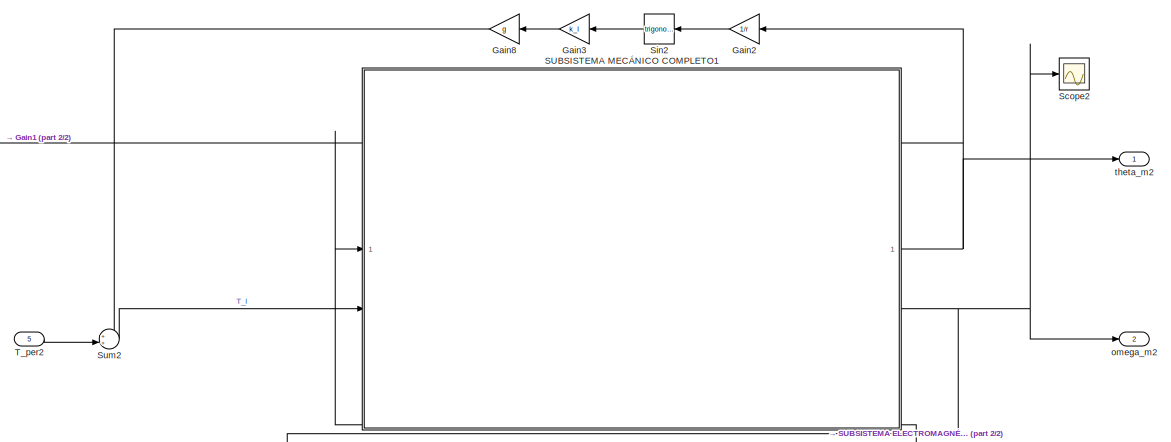
[diagram: root canvas - part 1/2, full width, top band]
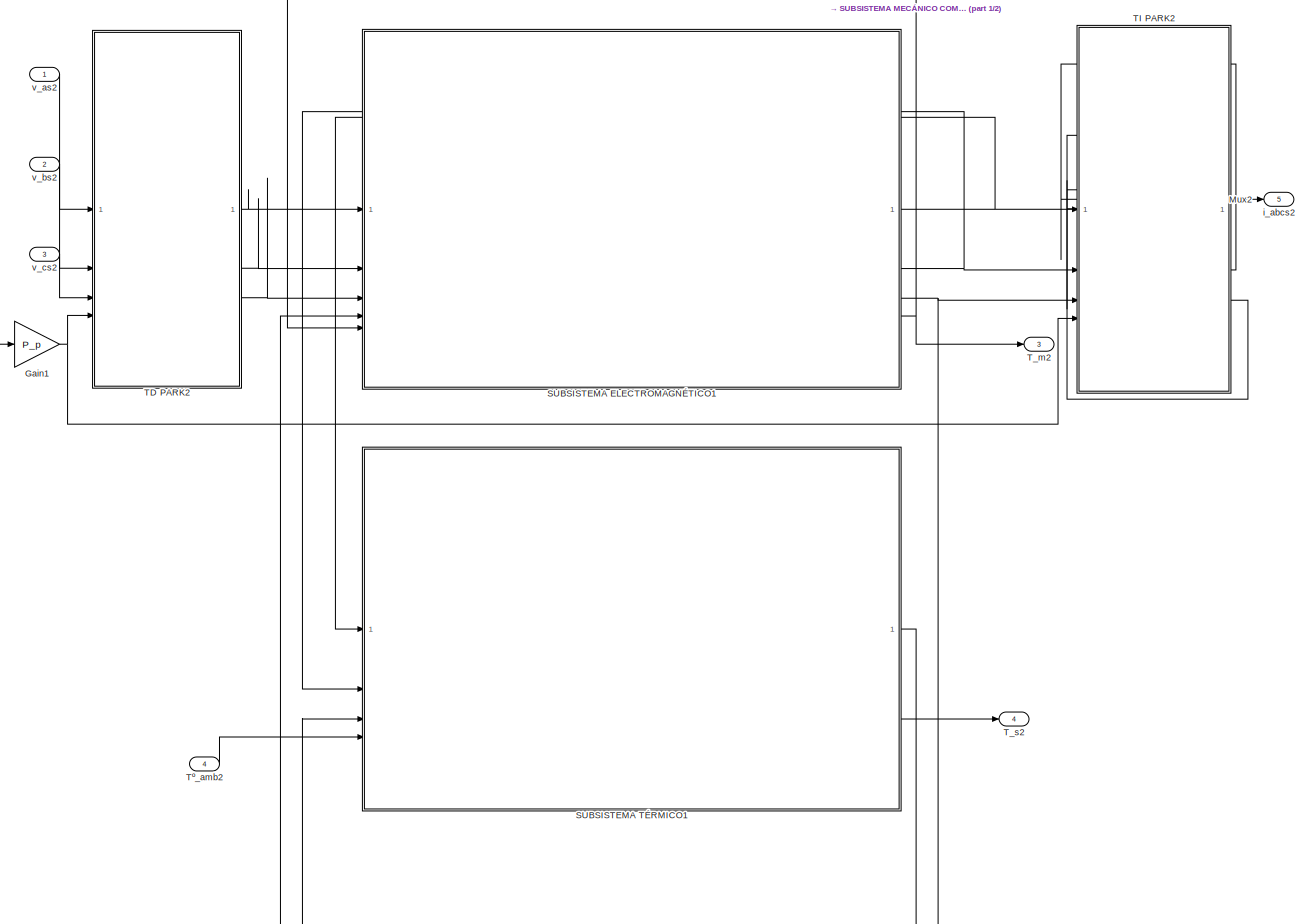
[diagram: root canvas - part 2/2, full width, middle band]
MODEL slx_60c17dea01b0
KIND model
CONFIG AbsTol = auto
CONFIG EnableMultiTasking = off
CONFIG FixedStep = auto
CONFIG MaxStep = auto
CONFIG MinStep = auto
CONFIG RelTol = 1e-3
CONFIG SampleTimeConstraint = Unconstrained
CONFIG SolverName = VariableStepAuto
CONFIG StartTime = 0.0
CONFIG StopTime = 10.0
BLOCK [Gain] Gain1
  Gain = P_p
BLOCK [Gain] Gain2
  Gain = 1/r
  NameLocation = top
BLOCK [Gain] Gain3
  Gain = k_l
  NameLocation = top
BLOCK [Gain] Gain8
  Gain = g
  NameLocation = top
BLOCK [Mux] Mux2
  DisplayOption = bar
  Inputs = 3
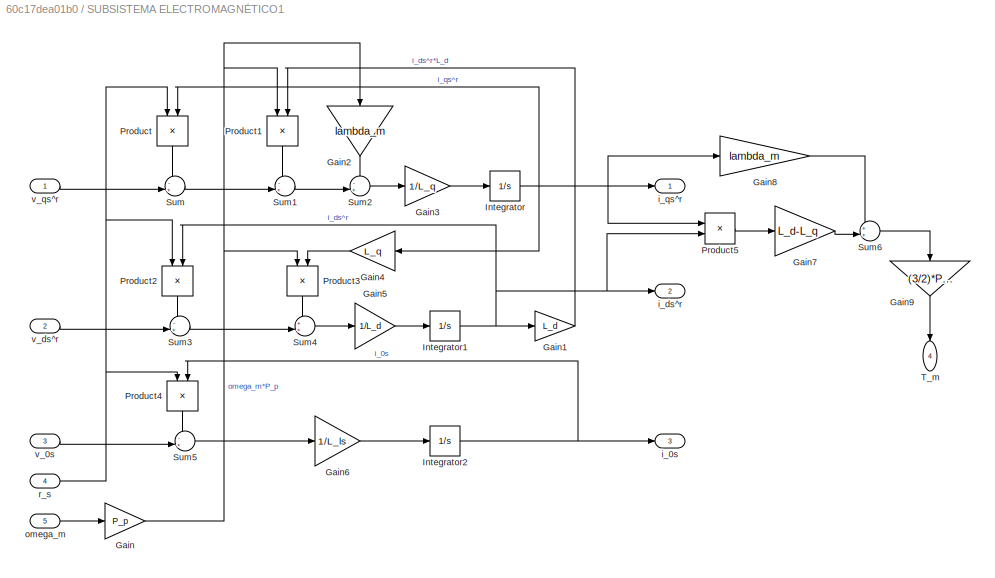
BLOCK [SubSystem] SUBSISTEMA ELECTROMAGNÉTICO1
BLOCK [Gain] SUBSISTEMA ELECTROMAGNÉTICO1/Gain
  Gain = P_p
BLOCK [Gain] SUBSISTEMA ELECTROMAGNÉTICO1/Gain1
  Gain = L_d
BLOCK [Gain] SUBSISTEMA ELECTROMAGNÉTICO1/Gain2
  Gain = lambda_m
  NameLocation = left
BLOCK [Gain] SUBSISTEMA ELECTROMAGNÉTICO1/Gain3
  Gain = 1/L_q
BLOCK [Gain] SUBSISTEMA ELECTROMAGNÉTICO1/Gain4
  Gain = L_q
  NameLocation = top
BLOCK [Gain] SUBSISTEMA ELECTROMAGNÉTICO1/Gain5
  Gain = 1/L_d
BLOCK [Gain] SUBSISTEMA ELECTROMAGNÉTICO1/Gain6
  Gain = 1/L_ls
BLOCK [Gain] SUBSISTEMA ELECTROMAGNÉTICO1/Gain7
  Gain = L_d-L_q
BLOCK [Gain] SUBSISTEMA ELECTROMAGNÉTICO1/Gain8
  Gain = lambda_m
BLOCK [Gain] SUBSISTEMA ELECTROMAGNÉTICO1/Gain9
  Gain = (3/2)*P_p
  NameLocation = left
BLOCK [Integrator] SUBSISTEMA ELECTROMAGNÉTICO1/Integrator
BLOCK [Integrator] SUBSISTEMA ELECTROMAGNÉTICO1/Integrator1
BLOCK [Integrator] SUBSISTEMA ELECTROMAGNÉTICO1/Integrator2
BLOCK [Product] SUBSISTEMA ELECTROMAGNÉTICO1/Product
  NameLocation = left
BLOCK [Product] SUBSISTEMA ELECTROMAGNÉTICO1/Product1
  NameLocation = left
BLOCK [Product] SUBSISTEMA ELECTROMAGNÉTICO1/Product2
  NameLocation = left
BLOCK [Product] SUBSISTEMA ELECTROMAGNÉTICO1/Product3
  NameLocation = left
BLOCK [Product] SUBSISTEMA ELECTROMAGNÉTICO1/Product4
  NameLocation = left
BLOCK [Product] SUBSISTEMA ELECTROMAGNÉTICO1/Product5
BLOCK [Sum] SUBSISTEMA ELECTROMAGNÉTICO1/Sum
  Inputs = -+|
BLOCK [Sum] SUBSISTEMA ELECTROMAGNÉTICO1/Sum1
  Inputs = -+|
BLOCK [Sum] SUBSISTEMA ELECTROMAGNÉTICO1/Sum2
  Inputs = -+|
BLOCK [Sum] SUBSISTEMA ELECTROMAGNÉTICO1/Sum3
  Inputs = -+|
BLOCK [Sum] SUBSISTEMA ELECTROMAGNÉTICO1/Sum4
  Inputs = ++|
BLOCK [Sum] SUBSISTEMA ELECTROMAGNÉTICO1/Sum5
  Inputs = -+|
BLOCK [Sum] SUBSISTEMA ELECTROMAGNÉTICO1/Sum6
  Inputs = ++|
BLOCK [Outport] SUBSISTEMA ELECTROMAGNÉTICO1/T_m
  NameLocation = left
  Port = 4
BLOCK [Outport] SUBSISTEMA ELECTROMAGNÉTICO1/i_0s
  Port = 3
BLOCK [Outport] SUBSISTEMA ELECTROMAGNÉTICO1/i_ds^r
  Port = 2
BLOCK [Outport] SUBSISTEMA ELECTROMAGNÉTICO1/i_qs^r
BLOCK [Inport] SUBSISTEMA ELECTROMAGNÉTICO1/omega_m
  Port = 5
BLOCK [Inport] SUBSISTEMA ELECTROMAGNÉTICO1/r_s
  Port = 4
BLOCK [Inport] SUBSISTEMA ELECTROMAGNÉTICO1/v_0s
  Port = 3
BLOCK [Inport] SUBSISTEMA ELECTROMAGNÉTICO1/v_ds^r
  Port = 2
BLOCK [Inport] SUBSISTEMA ELECTROMAGNÉTICO1/v_qs^r
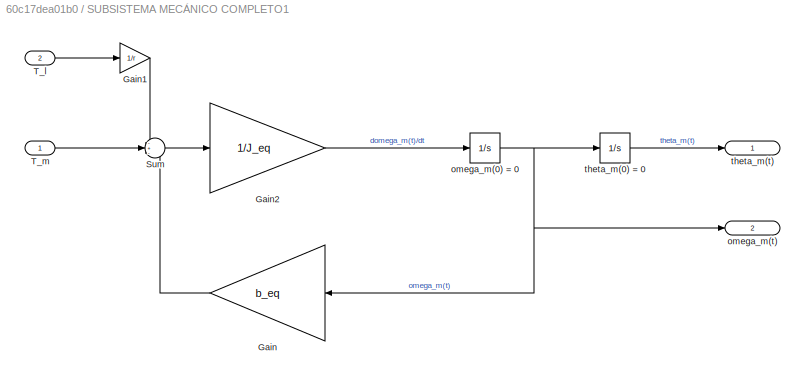
BLOCK [SubSystem] SUBSISTEMA MECÁNICO COMPLETO1
BLOCK [Gain] SUBSISTEMA MECÁNICO COMPLETO1/Gain
  Gain = b_eq
  NameLocation = top
BLOCK [Gain] SUBSISTEMA MECÁNICO COMPLETO1/Gain1
  Gain = 1/r
BLOCK [Gain] SUBSISTEMA MECÁNICO COMPLETO1/Gain2
  Gain = 1/J_eq
BLOCK [Sum] SUBSISTEMA MECÁNICO COMPLETO1/Sum
  Inputs = -+-
BLOCK [Inport] SUBSISTEMA MECÁNICO COMPLETO1/T_l
  Port = 2
BLOCK [Inport] SUBSISTEMA MECÁNICO COMPLETO1/T_m
BLOCK [Integrator] SUBSISTEMA MECÁNICO COMPLETO1/omega_m(0) = 0
BLOCK [Outport] SUBSISTEMA MECÁNICO COMPLETO1/omega_m(t)
  Port = 2
BLOCK [Integrator] SUBSISTEMA MECÁNICO COMPLETO1/theta_m(0) = 0
BLOCK [Outport] SUBSISTEMA MECÁNICO COMPLETO1/theta_m(t)
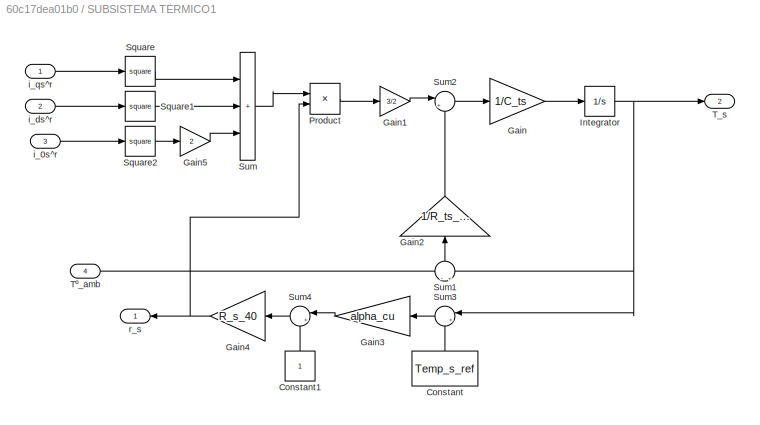
BLOCK [SubSystem] SUBSISTEMA TÉRMICO1
BLOCK [Constant] SUBSISTEMA TÉRMICO1/Constant
  NameLocation = right
  Value = Temp_s_ref
BLOCK [Constant] SUBSISTEMA TÉRMICO1/Constant1
  NameLocation = right
BLOCK [Gain] SUBSISTEMA TÉRMICO1/Gain
  Gain = 1/C_ts
BLOCK [Gain] SUBSISTEMA TÉRMICO1/Gain1
  Gain = 3/2
BLOCK [Gain] SUBSISTEMA TÉRMICO1/Gain2
  Gain = 1/R_ts_amb
  NameLocation = right
BLOCK [Gain] SUBSISTEMA TÉRMICO1/Gain3
  Gain = alpha_cu
  NameLocation = top
BLOCK [Gain] SUBSISTEMA TÉRMICO1/Gain4
  Gain = R_s_40
  NameLocation = top
BLOCK [Gain] SUBSISTEMA TÉRMICO1/Gain5
  Gain = 2
BLOCK [Integrator] SUBSISTEMA TÉRMICO1/Integrator
  InitialCondition = 40
BLOCK [Product] SUBSISTEMA TÉRMICO1/Product
BLOCK [Math] SUBSISTEMA TÉRMICO1/Square
  Operator = square
BLOCK [Math] SUBSISTEMA TÉRMICO1/Square1
  Operator = square
BLOCK [Math] SUBSISTEMA TÉRMICO1/Square2
  Operator = square
BLOCK [Sum] SUBSISTEMA TÉRMICO1/Sum
  IconShape = rectangular
  Inputs = +++
BLOCK [Sum] SUBSISTEMA TÉRMICO1/Sum1
  Inputs = -|+
  NameLocation = right
BLOCK [Sum] SUBSISTEMA TÉRMICO1/Sum2
  Inputs = |+-
BLOCK [Sum] SUBSISTEMA TÉRMICO1/Sum3
  Inputs = |+-
  NameLocation = top
BLOCK [Sum] SUBSISTEMA TÉRMICO1/Sum4
  Inputs = |++
  NameLocation = top
BLOCK [Outport] SUBSISTEMA TÉRMICO1/T_s
  Port = 2
BLOCK [Inport] SUBSISTEMA TÉRMICO1/Tº_amb
  Port = 4
BLOCK [Inport] SUBSISTEMA TÉRMICO1/i_0s^r
  Port = 3
BLOCK [Inport] SUBSISTEMA TÉRMICO1/i_ds^r
  Port = 2
BLOCK [Inport] SUBSISTEMA TÉRMICO1/i_qs^r
BLOCK [Outport] SUBSISTEMA TÉRMICO1/r_s
  NameLocation = top
BLOCK [Scope] Scope2
  Floating = off
  NumInputPorts = 1
  ScopeSpecificationString = Simulink.scopes.TimeScopeBlockCfg('CurrentConfiguration', extmgr.ConfigurationSet(extmgr.Configuration('Core','General UI',true),extmgr.Configuration('Core','Source UI',true),extmgr.Configuration('Sources','WiredSimulink',true,'DataLoggingVariableName','ScopeData1'),extmgr.Configuration('Visuals','Time Domain',true,'SerializedDisplays',{struct('MinYLimReal','-127.62191','MaxYLimReal','534.52388','...<+1574ch>
BLOCK [Trigonometry] Sin2
  NameLocation = top
BLOCK [Sum] Sum2
  Inputs = ++|
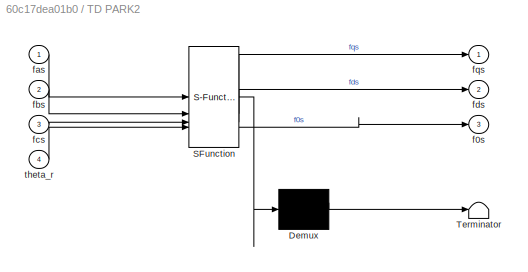
BLOCK [SubSystem] TD PARK2
  ErrorFcn = Stateflow.Translate.translate
  PermitHierarchicalResolution = ExplicitOnly
  SFBlockType = MATLAB Function
  TreatAsAtomicUnit = on
BLOCK [Demux] TD PARK2/ Demux 
  Outputs = 1
BLOCK [S-Function] TD PARK2/ SFunction 
  EnableBusSupport = on
  FunctionName = sf_sfun
  PortCounts = [4 4]
  SFcnIsStateOwnerBlock = off
  SFunctionDeploymentMode = off
  Tag = Stateflow S-Function 1
BLOCK [Terminator] TD PARK2/ Terminator 
BLOCK [Outport] TD PARK2/f0s
  Port = 3
BLOCK [Inport] TD PARK2/fas
BLOCK [Inport] TD PARK2/fbs
  Port = 2
BLOCK [Inport] TD PARK2/fcs
  Port = 3
BLOCK [Outport] TD PARK2/fds
  Port = 2
BLOCK [Outport] TD PARK2/fqs
BLOCK [Inport] TD PARK2/theta_r
  Port = 4
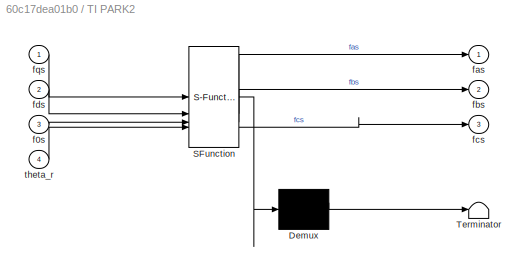
BLOCK [SubSystem] TI PARK2
  ErrorFcn = Stateflow.Translate.translate
  PermitHierarchicalResolution = ExplicitOnly
  SFBlockType = MATLAB Function
  TreatAsAtomicUnit = on
BLOCK [Demux] TI PARK2/ Demux 
  Outputs = 1
BLOCK [S-Function] TI PARK2/ SFunction 
  EnableBusSupport = on
  FunctionName = sf_sfun
  PortCounts = [4 4]
  SFcnIsStateOwnerBlock = off
  SFunctionDeploymentMode = off
  Tag = Stateflow S-Function 2
BLOCK [Terminator] TI PARK2/ Terminator 
BLOCK [Inport] TI PARK2/f0s
  Port = 3
BLOCK [Outport] TI PARK2/fas
BLOCK [Outport] TI PARK2/fbs
  Port = 2
BLOCK [Outport] TI PARK2/fcs
  Port = 3
BLOCK [Inport] TI PARK2/fds
  Port = 2
BLOCK [Inport] TI PARK2/fqs
BLOCK [Inport] TI PARK2/theta_r
  Port = 4
BLOCK [Outport] T_m2
  Port = 3
BLOCK [Inport] T_per2
  Port = 5
BLOCK [Outport] T_s2
  Port = 4
BLOCK [Inport] Tº_amb2
  Port = 4
BLOCK [Outport] i_abcs2
  Port = 5
BLOCK [Outport] omega_m2
  Port = 2
BLOCK [Outport] theta_m2
BLOCK [Inport] v_as2
BLOCK [Inport] v_bs2
  Port = 2
BLOCK [Inport] v_cs2
  Port = 3
NET Gain1:1 -> TD PARK2:4, TI PARK2:4
LINE Gain2:1 -> Sin2:1
LINE Gain3:1 -> Gain8:1
LINE Gain8:1 -> Sum2:1
LINE Mux2:1 -> i_abcs2:1
LINE SUBSISTEMA ELECTROMAGNÉTICO1/Gain1:1 -> SUBSISTEMA ELECTROMAGNÉTICO1/Product1:2
LINE SUBSISTEMA ELECTROMAGNÉTICO1/Gain2:1 -> SUBSISTEMA ELECTROMAGNÉTICO1/Sum2:1
LINE SUBSISTEMA ELECTROMAGNÉTICO1/Gain3:1 -> SUBSISTEMA ELECTROMAGNÉTICO1/Integrator:1
LINE SUBSISTEMA ELECTROMAGNÉTICO1/Gain4:1 -> SUBSISTEMA ELECTROMAGNÉTICO1/Product3:2
LINE SUBSISTEMA ELECTROMAGNÉTICO1/Gain5:1 -> SUBSISTEMA ELECTROMAGNÉTICO1/Integrator1:1
LINE SUBSISTEMA ELECTROMAGNÉTICO1/Gain6:1 -> SUBSISTEMA ELECTROMAGNÉTICO1/Integrator2:1
LINE SUBSISTEMA ELECTROMAGNÉTICO1/Gain7:1 -> SUBSISTEMA ELECTROMAGNÉTICO1/Sum6:2
LINE SUBSISTEMA ELECTROMAGNÉTICO1/Gain8:1 -> SUBSISTEMA ELECTROMAGNÉTICO1/Sum6:1
LINE SUBSISTEMA ELECTROMAGNÉTICO1/Gain9:1 -> SUBSISTEMA ELECTROMAGNÉTICO1/T_m:1
NET SUBSISTEMA ELECTROMAGNÉTICO1/Gain:1 -> SUBSISTEMA ELECTROMAGNÉTICO1/Gain2:1, SUBSISTEMA ELECTROMAGNÉTICO1/Product1:1, SUBSISTEMA ELECTROMAGNÉTICO1/Product3:1
NET SUBSISTEMA ELECTROMAGNÉTICO1/Integrator1:1 -> SUBSISTEMA ELECTROMAGNÉTICO1/Gain1:1, SUBSISTEMA ELECTROMAGNÉTICO1/Product2:2, SUBSISTEMA ELECTROMAGNÉTICO1/Product5:2, SUBSISTEMA ELECTROMAGNÉTICO1/i_ds^r:1
NET SUBSISTEMA ELECTROMAGNÉTICO1/Integrator2:1 -> SUBSISTEMA ELECTROMAGNÉTICO1/Product4:2, SUBSISTEMA ELECTROMAGNÉTICO1/i_0s:1
NET SUBSISTEMA ELECTROMAGNÉTICO1/Integrator:1 -> SUBSISTEMA ELECTROMAGNÉTICO1/Gain4:1, SUBSISTEMA ELECTROMAGNÉTICO1/Gain8:1, SUBSISTEMA ELECTROMAGNÉTICO1/Product5:1, SUBSISTEMA ELECTROMAGNÉTICO1/Product:2, SUBSISTEMA ELECTROMAGNÉTICO1/i_qs^r:1
LINE SUBSISTEMA ELECTROMAGNÉTICO1/Product1:1 -> SUBSISTEMA ELECTROMAGNÉTICO1/Sum1:1
LINE SUBSISTEMA ELECTROMAGNÉTICO1/Product2:1 -> SUBSISTEMA ELECTROMAGNÉTICO1/Sum3:1
LINE SUBSISTEMA ELECTROMAGNÉTICO1/Product3:1 -> SUBSISTEMA ELECTROMAGNÉTICO1/Sum4:1
LINE SUBSISTEMA ELECTROMAGNÉTICO1/Product4:1 -> SUBSISTEMA ELECTROMAGNÉTICO1/Sum5:1
LINE SUBSISTEMA ELECTROMAGNÉTICO1/Product5:1 -> SUBSISTEMA ELECTROMAGNÉTICO1/Gain7:1
LINE SUBSISTEMA ELECTROMAGNÉTICO1/Product:1 -> SUBSISTEMA ELECTROMAGNÉTICO1/Sum:1
LINE SUBSISTEMA ELECTROMAGNÉTICO1/Sum1:1 -> SUBSISTEMA ELECTROMAGNÉTICO1/Sum2:2
LINE SUBSISTEMA ELECTROMAGNÉTICO1/Sum2:1 -> SUBSISTEMA ELECTROMAGNÉTICO1/Gain3:1
LINE SUBSISTEMA ELECTROMAGNÉTICO1/Sum3:1 -> SUBSISTEMA ELECTROMAGNÉTICO1/Sum4:2
LINE SUBSISTEMA ELECTROMAGNÉTICO1/Sum4:1 -> SUBSISTEMA ELECTROMAGNÉTICO1/Gain5:1
LINE SUBSISTEMA ELECTROMAGNÉTICO1/Sum5:1 -> SUBSISTEMA ELECTROMAGNÉTICO1/Gain6:1
LINE SUBSISTEMA ELECTROMAGNÉTICO1/Sum6:1 -> SUBSISTEMA ELECTROMAGNÉTICO1/Gain9:1
LINE SUBSISTEMA ELECTROMAGNÉTICO1/Sum:1 -> SUBSISTEMA ELECTROMAGNÉTICO1/Sum1:2
LINE SUBSISTEMA ELECTROMAGNÉTICO1/omega_m:1 -> SUBSISTEMA ELECTROMAGNÉTICO1/Gain:1
NET SUBSISTEMA ELECTROMAGNÉTICO1/r_s:1 -> SUBSISTEMA ELECTROMAGNÉTICO1/Product2:1, SUBSISTEMA ELECTROMAGNÉTICO1/Product4:1, SUBSISTEMA ELECTROMAGNÉTICO1/Product:1
LINE SUBSISTEMA ELECTROMAGNÉTICO1/v_0s:1 -> SUBSISTEMA ELECTROMAGNÉTICO1/Sum5:2
LINE SUBSISTEMA ELECTROMAGNÉTICO1/v_ds^r:1 -> SUBSISTEMA ELECTROMAGNÉTICO1/Sum3:2
LINE SUBSISTEMA ELECTROMAGNÉTICO1/v_qs^r:1 -> SUBSISTEMA ELECTROMAGNÉTICO1/Sum:2
NET SUBSISTEMA ELECTROMAGNÉTICO1:1 -> SUBSISTEMA TÉRMICO1:1, TI PARK2:1
NET SUBSISTEMA ELECTROMAGNÉTICO1:2 -> SUBSISTEMA TÉRMICO1:2, TI PARK2:2
NET SUBSISTEMA ELECTROMAGNÉTICO1:3 -> SUBSISTEMA TÉRMICO1:3, TI PARK2:3
NET SUBSISTEMA ELECTROMAGNÉTICO1:4 -> SUBSISTEMA MECÁNICO COMPLETO1:1, T_m2:1
LINE SUBSISTEMA MECÁNICO COMPLETO1/Gain1:1 -> SUBSISTEMA MECÁNICO COMPLETO1/Sum:1
LINE SUBSISTEMA MECÁNICO COMPLETO1/Gain2:1 -> SUBSISTEMA MECÁNICO COMPLETO1/omega_m(0) = 0:1
LINE SUBSISTEMA MECÁNICO COMPLETO1/Gain:1 -> SUBSISTEMA MECÁNICO COMPLETO1/Sum:3
LINE SUBSISTEMA MECÁNICO COMPLETO1/Sum:1 -> SUBSISTEMA MECÁNICO COMPLETO1/Gain2:1
LINE SUBSISTEMA MECÁNICO COMPLETO1/T_l:1 -> SUBSISTEMA MECÁNICO COMPLETO1/Gain1:1
LINE SUBSISTEMA MECÁNICO COMPLETO1/T_m:1 -> SUBSISTEMA MECÁNICO COMPLETO1/Sum:2
NET SUBSISTEMA MECÁNICO COMPLETO1/omega_m(0) = 0:1 -> SUBSISTEMA MECÁNICO COMPLETO1/Gain:1, SUBSISTEMA MECÁNICO COMPLETO1/omega_m(t):1, SUBSISTEMA MECÁNICO COMPLETO1/theta_m(0) = 0:1
LINE SUBSISTEMA MECÁNICO COMPLETO1/theta_m(0) = 0:1 -> SUBSISTEMA MECÁNICO COMPLETO1/theta_m(t):1
NET SUBSISTEMA MECÁNICO COMPLETO1:1 -> Gain1:1, Gain2:1, theta_m2:1
NET SUBSISTEMA MECÁNICO COMPLETO1:2 -> SUBSISTEMA ELECTROMAGNÉTICO1:5, Scope2:1, omega_m2:1
LINE SUBSISTEMA TÉRMICO1/Constant1:1 -> SUBSISTEMA TÉRMICO1/Sum4:2
LINE SUBSISTEMA TÉRMICO1/Constant:1 -> SUBSISTEMA TÉRMICO1/Sum3:2
LINE SUBSISTEMA TÉRMICO1/Gain1:1 -> SUBSISTEMA TÉRMICO1/Sum2:1
LINE SUBSISTEMA TÉRMICO1/Gain2:1 -> SUBSISTEMA TÉRMICO1/Sum2:2
LINE SUBSISTEMA TÉRMICO1/Gain3:1 -> SUBSISTEMA TÉRMICO1/Sum4:1
NET SUBSISTEMA TÉRMICO1/Gain4:1 -> SUBSISTEMA TÉRMICO1/Product:2, SUBSISTEMA TÉRMICO1/r_s:1
LINE SUBSISTEMA TÉRMICO1/Gain5:1 -> SUBSISTEMA TÉRMICO1/Sum:3
LINE SUBSISTEMA TÉRMICO1/Gain:1 -> SUBSISTEMA TÉRMICO1/Integrator:1
NET SUBSISTEMA TÉRMICO1/Integrator:1 -> SUBSISTEMA TÉRMICO1/Sum1:2, SUBSISTEMA TÉRMICO1/Sum3:1, SUBSISTEMA TÉRMICO1/T_s:1
LINE SUBSISTEMA TÉRMICO1/Product:1 -> SUBSISTEMA TÉRMICO1/Gain1:1
LINE SUBSISTEMA TÉRMICO1/Square1:1 -> SUBSISTEMA TÉRMICO1/Sum:2
LINE SUBSISTEMA TÉRMICO1/Square2:1 -> SUBSISTEMA TÉRMICO1/Gain5:1
LINE SUBSISTEMA TÉRMICO1/Square:1 -> SUBSISTEMA TÉRMICO1/Sum:1
LINE SUBSISTEMA TÉRMICO1/Sum1:1 -> SUBSISTEMA TÉRMICO1/Gain2:1
LINE SUBSISTEMA TÉRMICO1/Sum2:1 -> SUBSISTEMA TÉRMICO1/Gain:1
LINE SUBSISTEMA TÉRMICO1/Sum3:1 -> SUBSISTEMA TÉRMICO1/Gain3:1
LINE SUBSISTEMA TÉRMICO1/Sum4:1 -> SUBSISTEMA TÉRMICO1/Gain4:1
LINE SUBSISTEMA TÉRMICO1/Sum:1 -> SUBSISTEMA TÉRMICO1/Product:1
LINE SUBSISTEMA TÉRMICO1/Tº_amb:1 -> SUBSISTEMA TÉRMICO1/Sum1:1
LINE SUBSISTEMA TÉRMICO1/i_0s^r:1 -> SUBSISTEMA TÉRMICO1/Square2:1
LINE SUBSISTEMA TÉRMICO1/i_ds^r:1 -> SUBSISTEMA TÉRMICO1/Square1:1
LINE SUBSISTEMA TÉRMICO1/i_qs^r:1 -> SUBSISTEMA TÉRMICO1/Square:1
LINE SUBSISTEMA TÉRMICO1:1 -> SUBSISTEMA ELECTROMAGNÉTICO1:4
LINE SUBSISTEMA TÉRMICO1:2 -> T_s2:1
LINE Sin2:1 -> Gain3:1
LINE Sum2:1 -> SUBSISTEMA MECÁNICO COMPLETO1:2
LINE TD PARK2:1 -> SUBSISTEMA ELECTROMAGNÉTICO1:1
LINE TD PARK2:2 -> SUBSISTEMA ELECTROMAGNÉTICO1:2
LINE TD PARK2:3 -> SUBSISTEMA ELECTROMAGNÉTICO1:3
LINE TI PARK2:1 -> Mux2:1
LINE TI PARK2:2 -> Mux2:2
LINE TI PARK2:3 -> Mux2:3
LINE T_per2:1 -> Sum2:2
LINE Tº_amb2:1 -> SUBSISTEMA TÉRMICO1:4
LINE v_as2:1 -> TD PARK2:1
LINE v_bs2:1 -> TD PARK2:2
LINE v_cs2:1 -> TD PARK2:3
note: NET lines group one-source signal fan-out (src -> all destinations, sorted); 1:1 wires keep LINE
CHART TD PARK2 states=1 transitions=1
  STATE_LABEL 'eML_blk_kernel()'
  STATE_LABEL 'SCRIPT:\nfunction [fqs, fds, f0s] = TD_PARK(fas, fbs, fcs, theta_r)\n\n    fabcs = [fas; fbs; fcs];\n\n    Ks = 2/3*[cos(theta_r) cos(theta_r - 2*pi/3) cos(theta_r + 2*pi/3)\n          sin(theta_r) sin(theta_r - 2*pi/3) sin(theta_r + 2*pi/3) \n          1/2          1/2                   1/2];\n\n    fqd0s = Ks * fabcs;\n\n    fqs = fqd0s(1);\n    fds = fqd0s(2);\n    f0s = fqd0s(3);\n\nend'
CHART TI PARK2 states=1 transitions=1
  STATE_LABEL 'eML_blk_kernel()'
  STATE_LABEL 'SCRIPT:\nfunction [fas, fbs, fcs] = TI_PARK(fqs, fds, f0s , theta_r)\n\n    fqd0s = [fqs; fds; f0s];\n\n    Ks = [cos(theta_r)         sin(theta_r)             1\n          cos(theta_r - 2*pi/3) sin(theta_r - 2*pi/3)    1\n          cos(theta_r + 2*pi/3) sin(theta_r + 2*pi/3)    1];\n\n    fabcs = Ks * fqd0s;\n\n    fas = fabcs(1);\n    fbs = fabcs(2);\n    fcs = fabcs(3);\n\nend'
CHART  states=0 transitions=0
CHART  states=0 transitions=0
